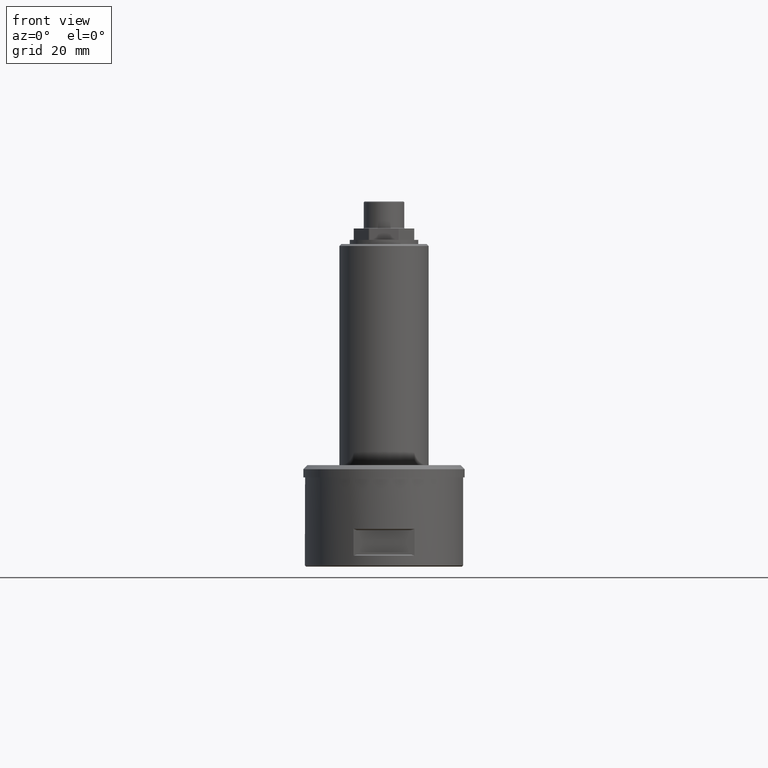
[diagram: clean part render]
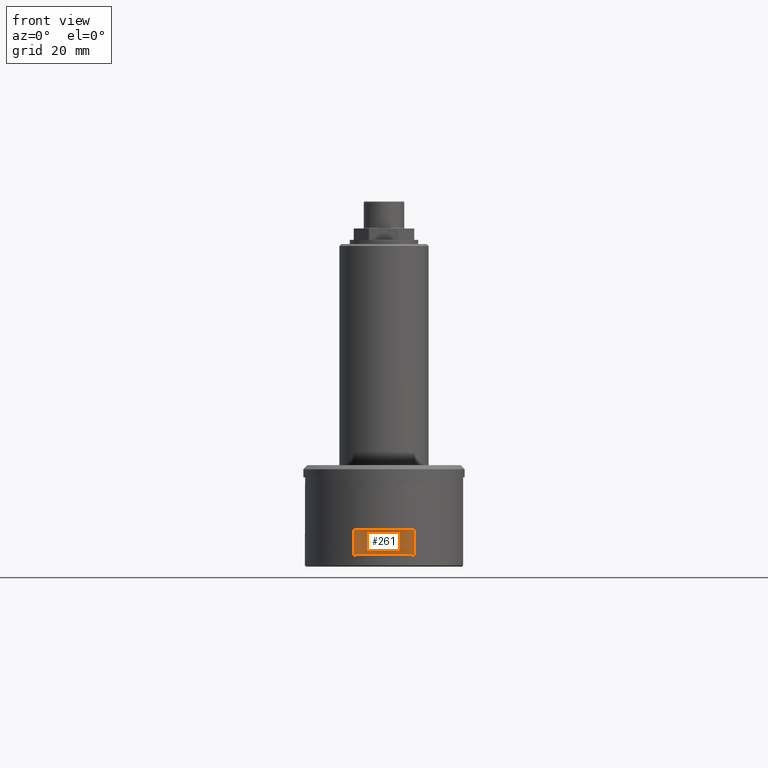
[diagram: same view with one face highlighted and labeled with its STEP entity id]
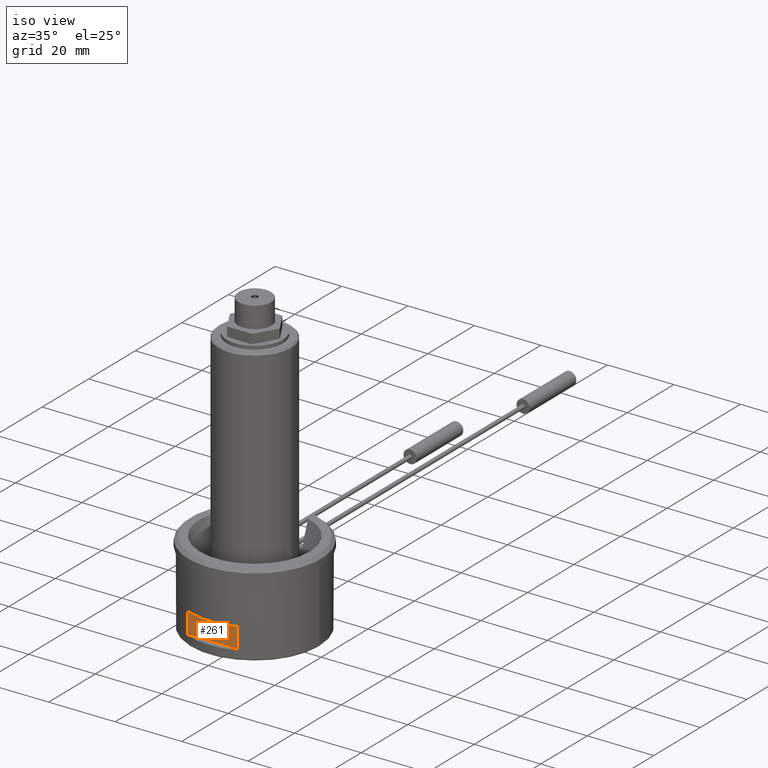
[diagram: same view with one face highlighted and labeled with its STEP entity id]
A machine part, front view. The second image highlights one B-rep face of the part: STEP entity #261.
A second angle (iso view) of the same face is appended — the face is thin or edge-on in the first view.
In plain terms, the highlighted planar face has unit normal (0, 1, 0).
Its self-contained STEP definition (entity closure, byte-faithful):
#71=PLANE('',#1196);
#117=LINE('',#2118,#161);
#118=LINE('',#2123,#162);
#119=LINE('',#2131,#163);
#120=LINE('',#2138,#164);
#161=VECTOR('',#1447,1.);
#162=VECTOR('',#1452,1.);
#163=VECTOR('',#1453,1.);
#164=VECTOR('',#1454,1.);
#199=FACE_OUTER_BOUND('',#467,.T.);
#261=ADVANCED_FACE('',(#199),#71,.F.);
#333=B_SPLINE_CURVE_WITH_KNOTS('',3,(#2126,#2127,#2128,#2129),
 .UNSPECIFIED.,.F.,.F.,(4,4),(0.,1.),.UNSPECIFIED.);
#334=B_SPLINE_CURVE_WITH_KNOTS('',3,(#2133,#2134,#2135,#2136),
 .UNSPECIFIED.,.F.,.F.,(4,4),(0.,1.),.UNSPECIFIED.);
#335=B_SPLINE_CURVE_WITH_KNOTS('',3,(#2140,#2141,#2142,#2143),
 .UNSPECIFIED.,.F.,.F.,(4,4),(0.,1.),.UNSPECIFIED.);
#336=B_SPLINE_CURVE_WITH_KNOTS('',3,(#2144,#2145,#2146,#2147),
 .UNSPECIFIED.,.F.,.F.,(4,4),(0.,1.),.UNSPECIFIED.);
#467=EDGE_LOOP('',(#654,#655,#656,#657,#658,#659,#660,#661));
#654=ORIENTED_EDGE('',*,*,#1003,.F.);
#655=ORIENTED_EDGE('',*,*,#1004,.T.);
#656=ORIENTED_EDGE('',*,*,#1005,.T.);
#657=ORIENTED_EDGE('',*,*,#1006,.T.);
#658=ORIENTED_EDGE('',*,*,#1007,.F.);
#659=ORIENTED_EDGE('',*,*,#1008,.T.);
#660=ORIENTED_EDGE('',*,*,#1001,.T.);
#661=ORIENTED_EDGE('',*,*,#1009,.T.);
#876=VERTEX_POINT('',#2119);
#877=VERTEX_POINT('',#2120);
#878=VERTEX_POINT('',#2124);
#879=VERTEX_POINT('',#2125);
#880=VERTEX_POINT('',#2130);
#881=VERTEX_POINT('',#2132);
#882=VERTEX_POINT('',#2137);
#883=VERTEX_POINT('',#2139);
#1001=EDGE_CURVE('',#876,#877,#117,.T.);
#1003=EDGE_CURVE('',#878,#879,#118,.T.);
#1004=EDGE_CURVE('',#878,#880,#333,.T.);
#1005=EDGE_CURVE('',#880,#881,#119,.T.);
#1006=EDGE_CURVE('',#881,#882,#334,.T.);
#1007=EDGE_CURVE('',#883,#882,#120,.T.);
#1008=EDGE_CURVE('',#883,#876,#335,.T.);
#1009=EDGE_CURVE('',#877,#879,#336,.T.);
#1196=AXIS2_PLACEMENT_3D('',#2148,#1455,#1456);
#1447=DIRECTION('',(-1.,0.,0.));
#1452=DIRECTION('',(0.,0.,1.));
#1453=DIRECTION('',(1.,0.,0.));
#1454=DIRECTION('',(0.,0.,-1.));
#1455=DIRECTION('',(0.,1.,0.));
#1456=DIRECTION('',(0.,0.,1.));
#2118=CARTESIAN_POINT('',(-8.07749999998543,-18.,8.99999999998455));
#2119=CARTESIAN_POINT('',(6.68131723539604,-18.,8.99999999998455));
#2120=CARTESIAN_POINT('',(-6.68131723539604,-18.,8.99999999998455));
#2123=CARTESIAN_POINT('',(-7.50000000000002,-18.,0.));
#2124=CARTESIAN_POINT('',(-7.50000000000002,-18.,2.69999999999999));
#2125=CARTESIAN_POINT('',(-7.50000000000002,-18.,9.29999999998456));
#2126=CARTESIAN_POINT('',(-7.50000000000002,-18.,2.69999999999999));
#2127=CARTESIAN_POINT('',(-7.2287329713317,-18.,2.80433347256473));
#2128=CARTESIAN_POINT('',(-6.95581167871184,-18.,2.90447997629446));
#2129=CARTESIAN_POINT('',(-6.68131723539604,-18.,2.99999999999999));
#2130=CARTESIAN_POINT('',(-6.68131723539604,-18.,2.99999999999999));
#2131=CARTESIAN_POINT('',(8.07749999998546,-18.,2.99999999999999));
#2132=CARTESIAN_POINT('',(6.68131723539604,-18.,2.99999999999999));
#2133=CARTESIAN_POINT('',(6.68131723539604,-18.,2.99999999999999));
#2134=CARTESIAN_POINT('',(6.95581167871184,-18.,2.90447997629446));
#2135=CARTESIAN_POINT('',(7.2287329713317,-18.,2.80433347256473));
#2136=CARTESIAN_POINT('',(7.50000000000002,-18.,2.69999999999999));
#2137=CARTESIAN_POINT('',(7.50000000000002,-18.,2.69999999999999));
#2138=CARTESIAN_POINT('',(7.50000000000002,-18.,0.));
#2139=CARTESIAN_POINT('',(7.50000000000002,-18.,9.29999999998456));
#2140=CARTESIAN_POINT('',(7.50000000000002,-18.,9.29999999998456));
#2141=CARTESIAN_POINT('',(7.2287329713317,-18.,9.19566652741982));
#2142=CARTESIAN_POINT('',(6.95581167871184,-18.,9.09552002369009));
#2143=CARTESIAN_POINT('',(6.68131723539604,-18.,8.99999999998455));
#2144=CARTESIAN_POINT('',(-6.68131723539604,-18.,8.99999999998455));
#2145=CARTESIAN_POINT('',(-6.95581167871184,-18.,9.09552002369009));
#2146=CARTESIAN_POINT('',(-7.2287329713317,-18.,9.19566652741982));
#2147=CARTESIAN_POINT('',(-7.50000000000002,-18.,9.29999999998456));
#2148=CARTESIAN_POINT('',(0.,-18.,0.));